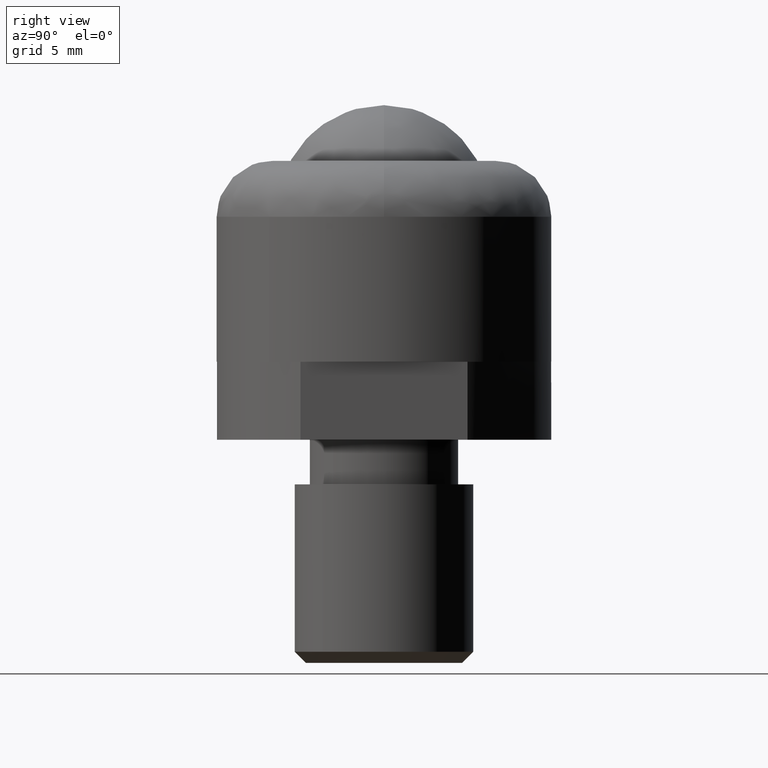
[diagram: clean part render]
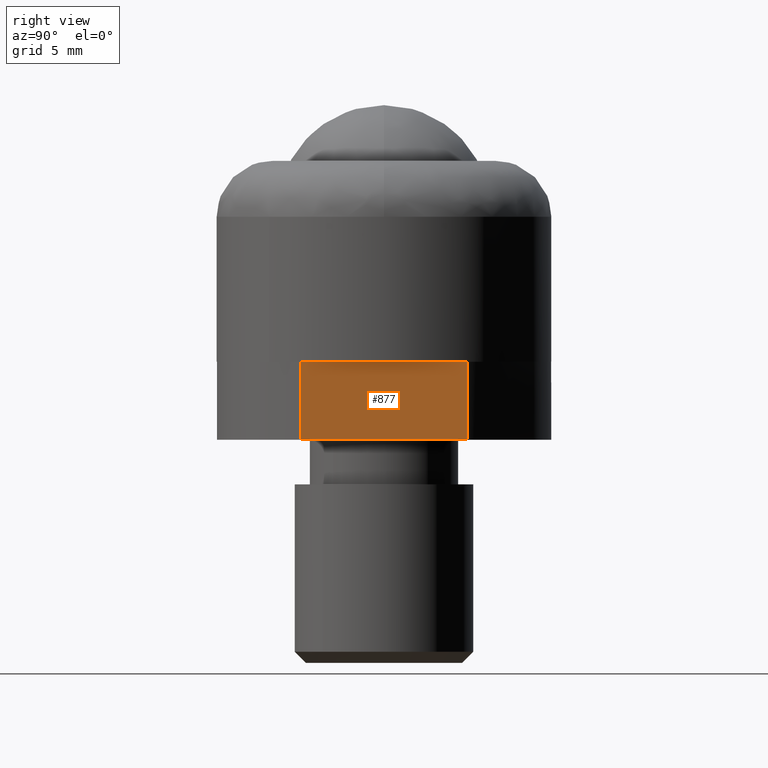
[diagram: same view with one face highlighted and labeled with its STEP entity id]
A machine part, right view. The second image highlights one B-rep face of the part: STEP entity #877.
In plain terms, the highlighted face is a freeform B-spline surface patch.
Its self-contained STEP definition (entity closure, byte-faithful):
#656=CARTESIAN_POINT('',(6.500000000000000,-3.741657386773955,0.0));
#657=VERTEX_POINT('',#656);
#658=CARTESIAN_POINT('',(6.500000000000000,3.741657386773960,0.0));
#659=VERTEX_POINT('',#658);
#660=CARTESIAN_POINT('',(6.500000000000000,-3.741657386773955,0.0));
#661=CARTESIAN_POINT('',(6.500000000000000,3.741657386773960,0.0));
#662=QUASI_UNIFORM_CURVE('',1,(#660,#661),.UNSPECIFIED.,.F.,.U.);
#663=EDGE_CURVE('',#657,#659,#662,.T.);
#725=CARTESIAN_POINT('',(6.500000000000000,-3.741657386773955,-3.499999999999950));
#726=VERTEX_POINT('',#725);
#727=CARTESIAN_POINT('',(6.500000000000000,3.741657386773960,-3.499999999999950));
#728=VERTEX_POINT('',#727);
#729=CARTESIAN_POINT('',(6.500000000000000,-3.741657386773955,-3.499999999999950));
#730=CARTESIAN_POINT('',(6.500000000000000,3.741657386773960,-3.499999999999950));
#731=QUASI_UNIFORM_CURVE('',1,(#729,#730),.UNSPECIFIED.,.F.,.U.);
#732=EDGE_CURVE('',#726,#728,#731,.T.);
#817=CARTESIAN_POINT('',(6.500000000000000,-3.741657386773955,-3.499999999999950));
#818=CARTESIAN_POINT('',(6.500000000000000,-3.741657386773955,0.0));
#819=QUASI_UNIFORM_CURVE('',1,(#817,#818),.UNSPECIFIED.,.F.,.U.);
#820=EDGE_CURVE('',#726,#657,#819,.T.);
#856=CARTESIAN_POINT('',(6.500000000000000,3.741657386773960,-3.499999999999950));
#857=CARTESIAN_POINT('',(6.500000000000000,3.741657386773960,0.0));
#858=QUASI_UNIFORM_CURVE('',1,(#856,#857),.UNSPECIFIED.,.F.,.U.);
#859=EDGE_CURVE('',#728,#659,#858,.T.);
#866=CARTESIAN_POINT('',(6.500000000000000,-4.115448945208557,0.174824993216318));
#867=CARTESIAN_POINT('',(6.500000000000000,-4.115448945208557,-3.674825087093585));
#868=CARTESIAN_POINT('',(6.500000000000000,4.115449145926707,0.174824993216318));
#869=CARTESIAN_POINT('',(6.500000000000000,4.115449145926707,-3.674825087093585));
#870=B_SPLINE_SURFACE_WITH_KNOTS('',1,1,((#866,#868),(#867,#869)),.UNSPECIFIED.,.F.,.F.,.U.,(2,2),(2,2),(0.0,3.849650080309903),(0.0,8.230898091135263),.UNSPECIFIED.);
#871=ORIENTED_EDGE('',*,*,#663,.F.);
#872=ORIENTED_EDGE('',*,*,#820,.F.);
#873=ORIENTED_EDGE('',*,*,#732,.T.);
#874=ORIENTED_EDGE('',*,*,#859,.T.);
#875=EDGE_LOOP('',(#871,#872,#873,#874));
#876=FACE_OUTER_BOUND('',#875,.T.);
#877=ADVANCED_FACE('',(#876),#870,.T.);